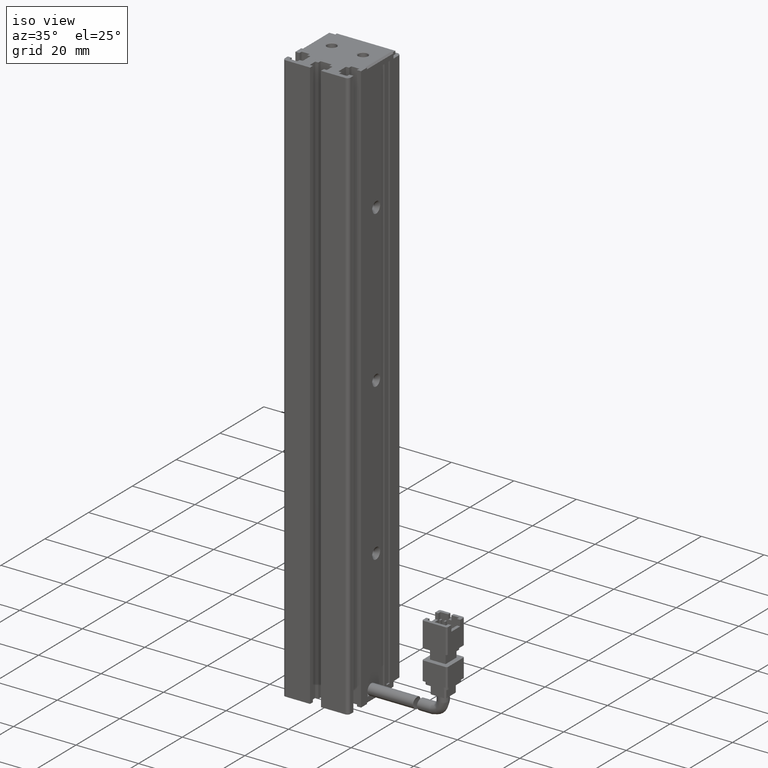
[diagram: clean part render]
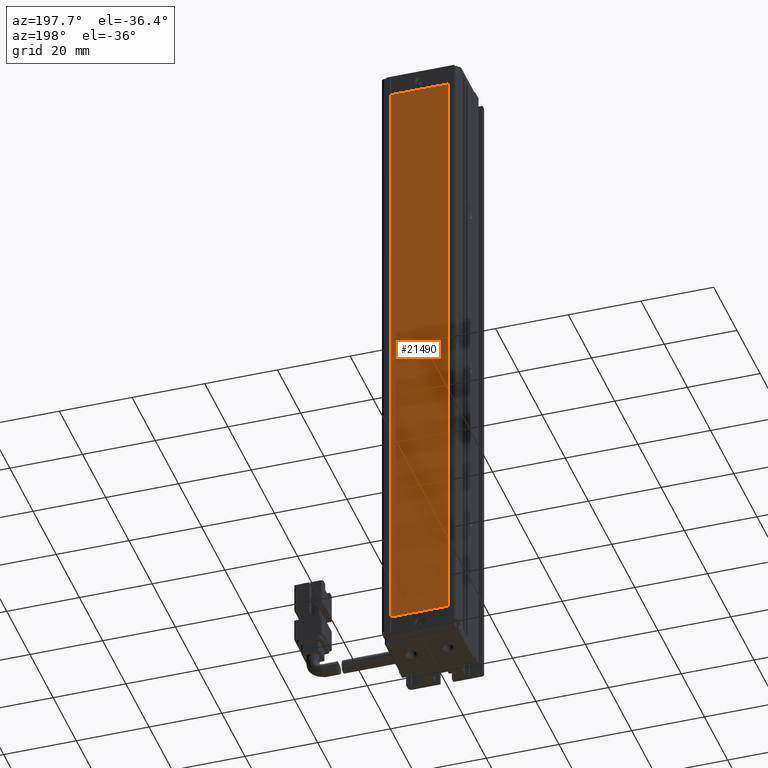
[diagram: tour spotlight — one face highlighted and labeled with its STEP entity id]
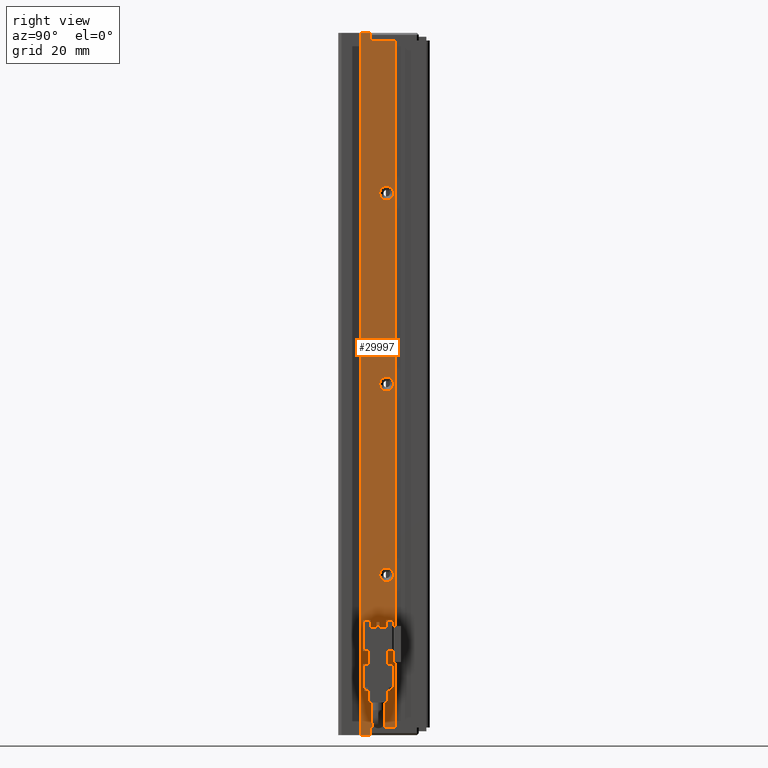
[diagram: tour spotlight — one face highlighted and labeled with its STEP entity id]
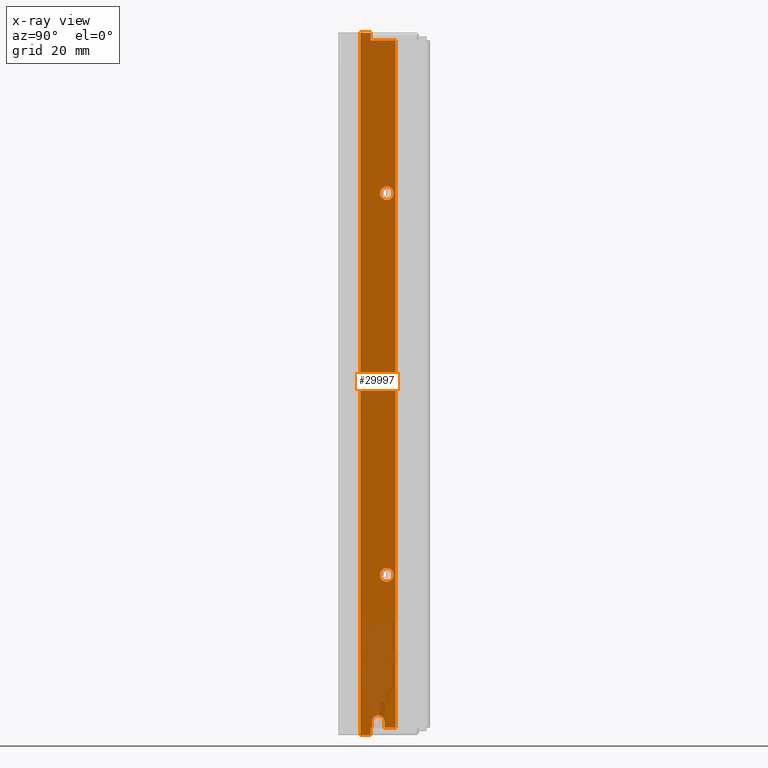
[diagram: x-ray of the same camera — body ghosted, this tour face saturated]
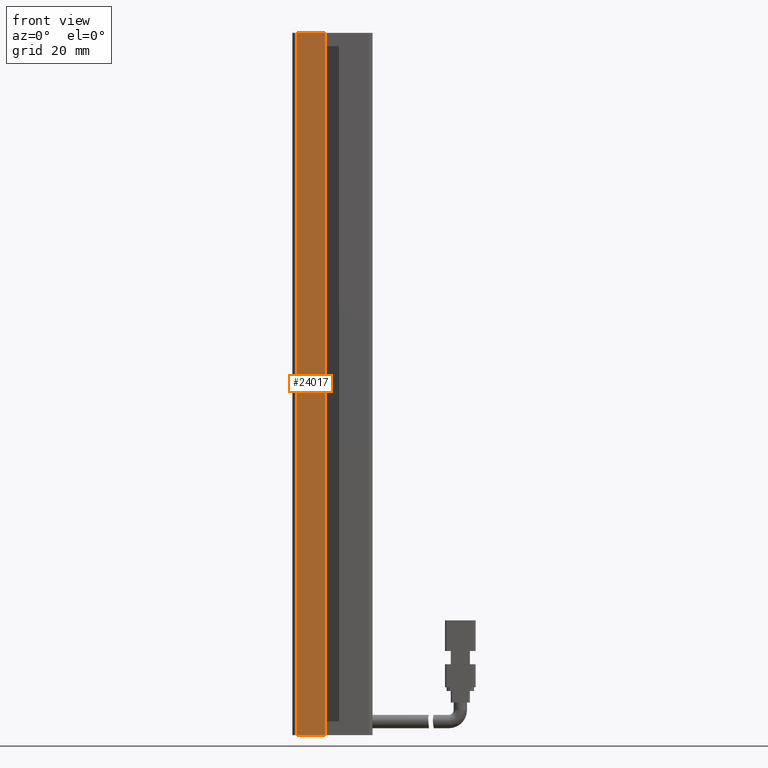
[diagram: tour spotlight — one face highlighted and labeled with its STEP entity id]
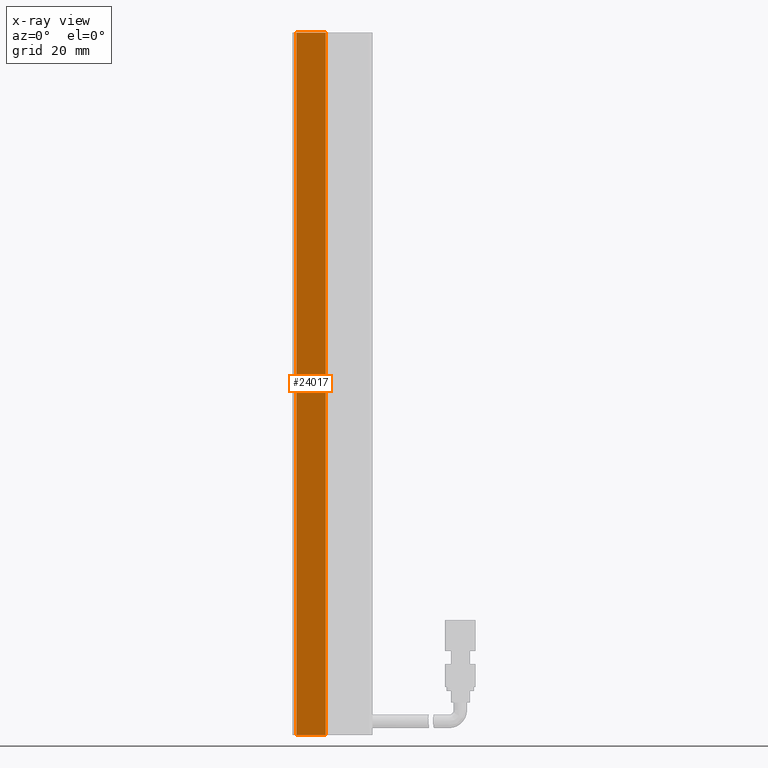
[diagram: x-ray of the same camera — body ghosted, this tour face saturated]
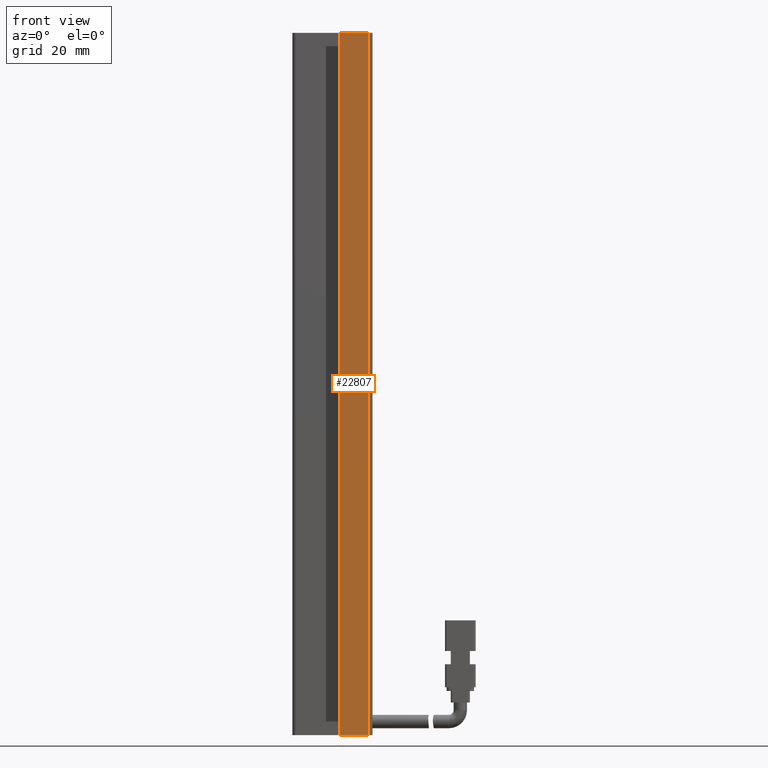
[diagram: tour spotlight — one face highlighted and labeled with its STEP entity id]
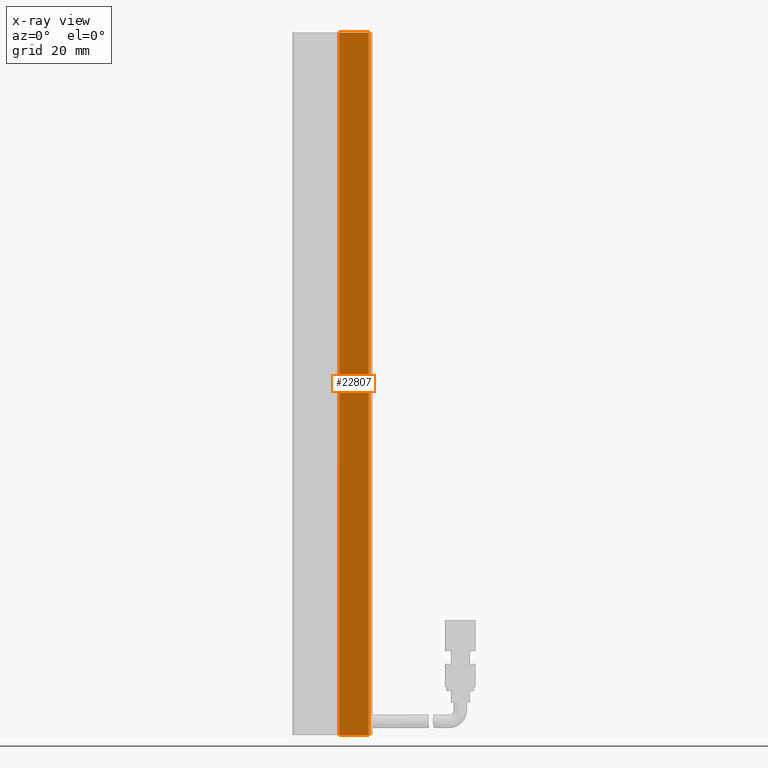
[diagram: x-ray of the same camera — body ghosted, this tour face saturated]
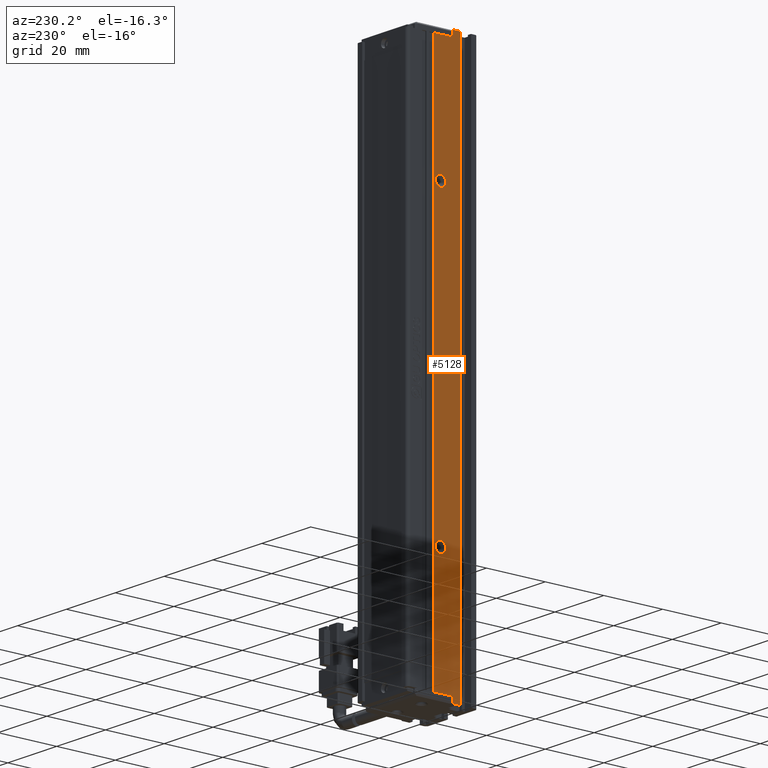
[diagram: tour spotlight — one face highlighted and labeled with its STEP entity id]
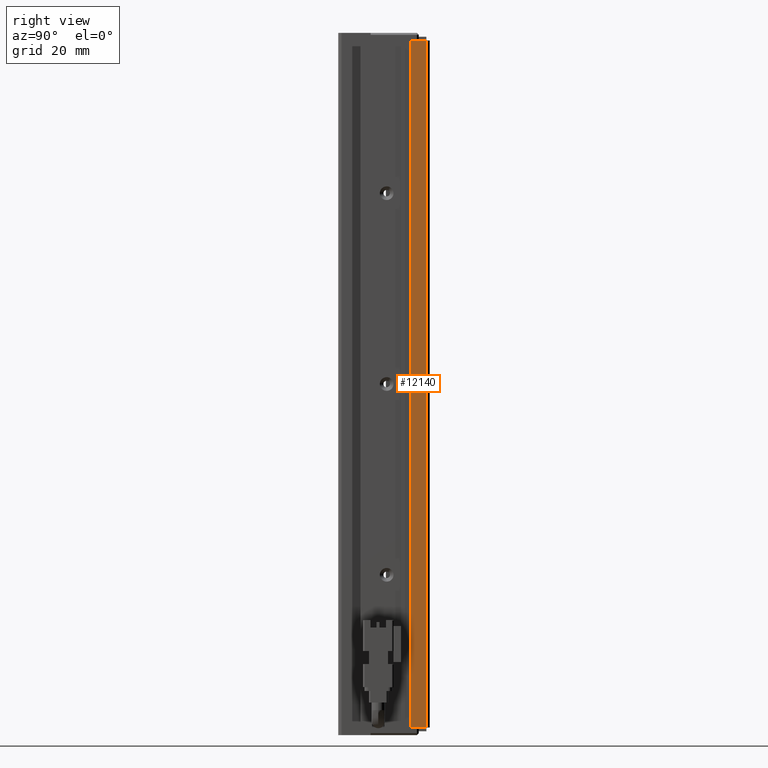
[diagram: tour spotlight — one face highlighted and labeled with its STEP entity id]
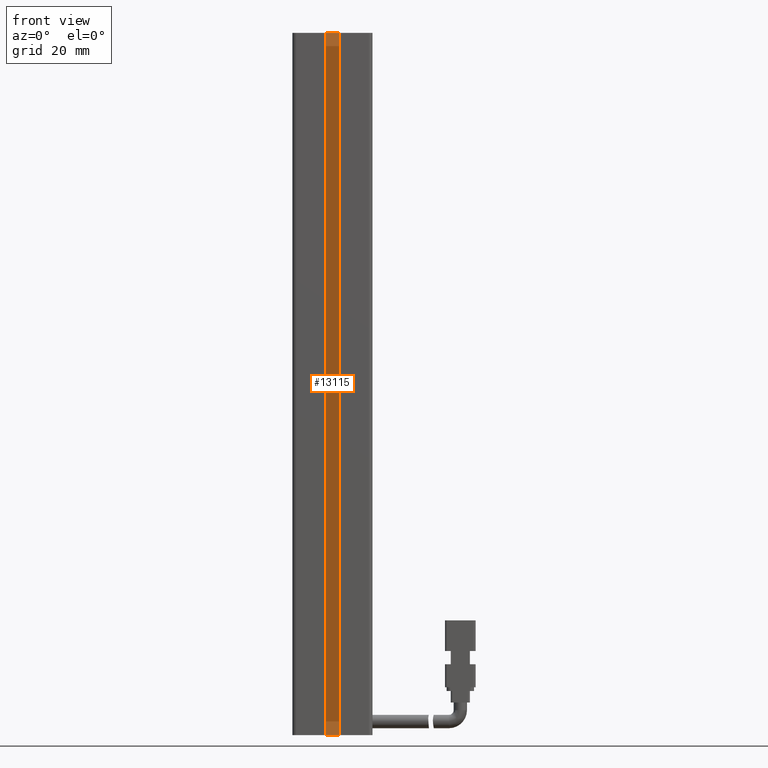
[diagram: tour spotlight — one face highlighted and labeled with its STEP entity id]
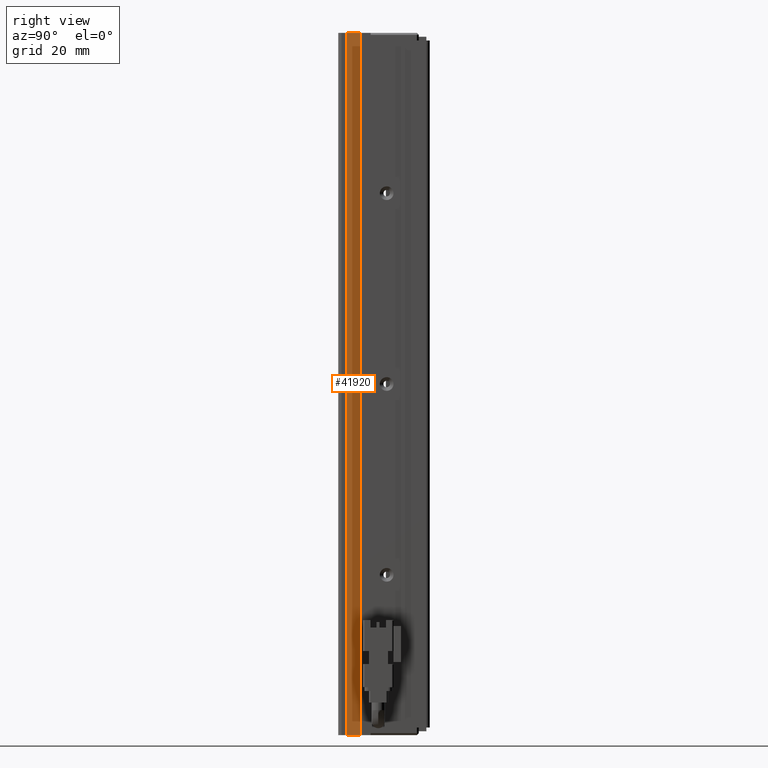
[diagram: tour spotlight — one face highlighted and labeled with its STEP entity id]
A machine part: a face-by-face anatomy tour. The part has 1075 B-rep faces; the first image is the clean iso view, then the 8 largest visible faces are spotlighted one at a time (largest first), each with its STEP entity span.

Face 1 — auxiliary view, entity #21490. In plain terms, the highlighted planar face has unit normal (0, -1, 0).
Definition (entity closure, byte-faithful):
#453 = FACE_OUTER_BOUND ( 'NONE', #15673, .T. ) ;
#854 = LINE ( 'NONE', #45803, #25491 ) ;
#1598 = VERTEX_POINT ( 'NONE', #27131 ) ;
#4751 = VERTEX_POINT ( 'NONE', #34715 ) ;
#4973 = LINE ( 'NONE', #32891, #18463 ) ;
#6495 = DIRECTION ( 'NONE',  ( 0.0000000000000000000, -0.0000000000000000000, -1.000000000000000000 ) ) ;
#6977 = DIRECTION ( 'NONE',  ( 0.0000000000000000000, -1.000000000000000000, 0.0000000000000000000 ) ) ;
#10190 = DIRECTION ( 'NONE',  ( 1.000000000000000000, -0.0000000000000000000, -0.0000000000000000000 ) ) ;
#10273 = PLANE ( 'NONE',  #34060 ) ;
#13652 = DIRECTION ( 'NONE',  ( -1.000000000000000000, -0.0000000000000000000, -0.0000000000000000000 ) ) ;
#15673 = EDGE_LOOP ( 'NONE', ( #43358, #32452, #18674, #39259 ) ) ;
#16815 = DIRECTION ( 'NONE',  ( -4.081702296416017000E-017, -0.0000000000000000000, 1.000000000000000000 ) ) ;
#18121 = CARTESIAN_POINT ( 'NONE',  ( 0.0000000000000000000, 34.29073232304836700, 0.0000000000000000000 ) ) ;
#18463 = VECTOR ( 'NONE', #32238, 1000.000000000000000 ) ;
#18674 = ORIENTED_EDGE ( 'NONE', *, *, #35194, .T. ) ;
#19139 = CARTESIAN_POINT ( 'NONE',  ( 48.92537974683541800, 34.29073232304836700, -200.0000000000000000 ) ) ;
#21490 = ADVANCED_FACE ( 'NONE', ( #453 ), #10273, .F. ) ;
#21510 = CARTESIAN_POINT ( 'NONE',  ( 48.92537974683541800, 34.29073232304836700, -30.00000000000001400 ) ) ;
#22504 = VECTOR ( 'NONE', #10190, 1000.000000000000000 ) ;
#24124 = VERTEX_POINT ( 'NONE', #34490 ) ;
#25433 = LINE ( 'NONE', #21510, #22504 ) ;
#25491 = VECTOR ( 'NONE', #16815, 1000.000000000000000 ) ;
#27131 = CARTESIAN_POINT ( 'NONE',  ( 32.92537974683541800, 34.29073232304836700, -30.00000000000001400 ) ) ;
#31486 = CARTESIAN_POINT ( 'NONE',  ( 32.92537974683542500, 34.29073232304836700, -200.0000000000000000 ) ) ;
#32238 = DIRECTION ( 'NONE',  ( -0.0000000000000000000, -0.0000000000000000000, -1.000000000000000000 ) ) ;
#32452 = ORIENTED_EDGE ( 'NONE', *, *, #43068, .T. ) ;
#32891 = CARTESIAN_POINT ( 'NONE',  ( 48.92537974683541800, 34.29073232304836700, -114.9999999999999700 ) ) ;
#33202 = VECTOR ( 'NONE', #13652, 1000.000000000000000 ) ;
#34060 = AXIS2_PLACEMENT_3D ( 'NONE', #18121, #6977, #6495 ) ;
#34490 = CARTESIAN_POINT ( 'NONE',  ( 48.92537974683541800, 34.29073232304836700, -30.00000000000001400 ) ) ;
#34715 = CARTESIAN_POINT ( 'NONE',  ( 32.92537974683542500, 34.29073232304836700, -200.0000000000000000 ) ) ;
#35194 = EDGE_CURVE ( 'NONE', #24124, #44761, #4973, .T. ) ;
#35500 = EDGE_CURVE ( 'NONE', #4751, #1598, #854, .T. ) ;
#39259 = ORIENTED_EDGE ( 'NONE', *, *, #45466, .T. ) ;
#43068 = EDGE_CURVE ( 'NONE', #1598, #24124, #25433, .T. ) ;
#43358 = ORIENTED_EDGE ( 'NONE', *, *, #35500, .T. ) ;
#44761 = VERTEX_POINT ( 'NONE', #19139 ) ;
#44935 = LINE ( 'NONE', #31486, #33202 ) ;
#45466 = EDGE_CURVE ( 'NONE', #44761, #4751, #44935, .T. ) ;
#45803 = CARTESIAN_POINT ( 'NONE',  ( 32.92537974683541800, 34.29073232304836700, -30.00000000000001400 ) ) ;

Face 2 — right view, entity #29997. An x-ray twin of the same camera follows (body ghosted, this face saturated) — the face is partly hidden behind the body. In plain terms, the highlighted planar face has unit normal (-1, 0, 0).
Definition (entity closure, byte-faithful):
#972 = EDGE_CURVE ( 'NONE', #11659, #45012, #28967, .T. ) ;
#1523 = CARTESIAN_POINT ( 'NONE',  ( 51.42537974683541800, 25.99073232304837300, -24.99999999999999300 ) ) ;
#1592 = VECTOR ( 'NONE', #2013, 1000.000000000000000 ) ;
#1963 = LINE ( 'NONE', #12804, #35336 ) ;
#2013 = DIRECTION ( 'NONE',  ( -0.0000000000000000000, 0.0000000000000000000, 1.000000000000000000 ) ) ;
#2159 = VERTEX_POINT ( 'NONE', #25344 ) ;
#2542 = ORIENTED_EDGE ( 'NONE', *, *, #34721, .F. ) ;
#2911 = ORIENTED_EDGE ( 'NONE', *, *, #24276, .F. ) ;
#3794 = EDGE_CURVE ( 'NONE', #37500, #9038, #20906, .T. ) ;
#3940 = LINE ( 'NONE', #39465, #1592 ) ;
#4318 = ORIENTED_EDGE ( 'NONE', *, *, #9995, .F. ) ;
#5286 = DIRECTION ( 'NONE',  ( -0.0000000000000000000, 0.0000000000000000000, 1.000000000000000000 ) ) ;
#5288 = CARTESIAN_POINT ( 'NONE',  ( 51.42537974683541800, 19.49073232304837000, -24.99999999999999300 ) ) ;
#5511 = VERTEX_POINT ( 'NONE', #12801 ) ;
#5896 = ORIENTED_EDGE ( 'NONE', *, *, #46355, .F. ) ;
#5998 = CARTESIAN_POINT ( 'NONE',  ( 51.42537974675766300, 23.69073232304837300, -115.0000000000000000 ) ) ;
#6133 = CARTESIAN_POINT ( 'NONE',  ( 51.42537974683541100, 23.14073232304837200, -203.4500000000000200 ) ) ;
#6305 = DIRECTION ( 'NONE',  ( 1.000000000000000000, 0.0000000000000000000, 0.0000000000000000000 ) ) ;
#6530 = CARTESIAN_POINT ( 'NONE',  ( 51.42537974683541800, 16.79073232304837000, -22.99999999999999300 ) ) ;
#6904 = DIRECTION ( 'NONE',  ( 1.000000000000000000, 0.0000000000000000000, 0.0000000000000000000 ) ) ;
#7023 = ORIENTED_EDGE ( 'NONE', *, *, #45415, .T. ) ;
#7496 = CARTESIAN_POINT ( 'NONE',  ( 51.42537974683541800, 19.84073232304836800, -205.0000000000000300 ) ) ;
#7987 = EDGE_CURVE ( 'NONE', #47756, #29856, #18409, .T. ) ;
#8563 = ORIENTED_EDGE ( 'NONE', *, *, #3794, .T. ) ;
#9018 = VERTEX_POINT ( 'NONE', #27978 ) ;
#9038 = VERTEX_POINT ( 'NONE', #27348 ) ;
#9421 = VECTOR ( 'NONE', #35374, 1000.000000000000000 ) ;
#9868 = CARTESIAN_POINT ( 'NONE',  ( 51.42537974683541800, 16.79073232304837000, -23.00000000000000700 ) ) ;
#9984 = VERTEX_POINT ( 'NONE', #26294 ) ;
#9995 = EDGE_CURVE ( 'NONE', #2159, #9018, #28775, .T. ) ;
#10055 = VECTOR ( 'NONE', #40263, 1000.000000000000000 ) ;
#10947 = DIRECTION ( 'NONE',  ( 0.0000000000000000000, 0.0000000000000000000, -1.000000000000000000 ) ) ;
#11037 = DIRECTION ( 'NONE',  ( -0.0000000000000000000, -1.000000000000000000, 0.0000000000000000000 ) ) ;
#11221 = DIRECTION ( 'NONE',  ( -1.000000000000000000, 0.0000000000000000000, 0.0000000000000000000 ) ) ;
#11659 = VERTEX_POINT ( 'NONE', #37707 ) ;
#12492 = EDGE_LOOP ( 'NONE', ( #44195, #43878 ) ) ;
#12719 = VECTOR ( 'NONE', #39485, 1000.000000000000000 ) ;
#12801 = CARTESIAN_POINT ( 'NONE',  ( 51.42537974683541800, 19.49073232304837000, -205.0000000000000300 ) ) ;
#12804 = CARTESIAN_POINT ( 'NONE',  ( 51.42537974683541800, 19.49073232304837000, -23.00000000000000700 ) ) ;
#12946 = EDGE_CURVE ( 'NONE', #26878, #40447, #47943, .T. ) ;
#13446 = CIRCLE ( 'NONE', #46757, 1.800000000002910400 ) ;
#13835 = ORIENTED_EDGE ( 'NONE', *, *, #32226, .F. ) ;
#14016 = CARTESIAN_POINT ( 'NONE',  ( 51.42537974687135000, 23.69073232304837300, -66.79999999999154200 ) ) ;
#14083 = AXIS2_PLACEMENT_3D ( 'NONE', #33387, #30077, #10947 ) ;
#14301 = DIRECTION ( 'NONE',  ( 0.0000000000000000000, 0.0000000000000000000, -1.000000000000000000 ) ) ;
#14691 = DIRECTION ( 'NONE',  ( 1.000000000000000000, 0.0000000000000000000, 0.0000000000000000000 ) ) ;
#14783 = DIRECTION ( 'NONE',  ( 1.000000000000000000, 0.0000000000000000000, 0.0000000000000000000 ) ) ;
#15781 = AXIS2_PLACEMENT_3D ( 'NONE', #18941, #11221, #25823 ) ;
#16795 = CIRCLE ( 'NONE', #31542, 1.799999999991544400 ) ;
#17309 = EDGE_CURVE ( 'NONE', #45012, #11659, #13446, .T. ) ;
#17529 = ORIENTED_EDGE ( 'NONE', *, *, #12946, .F. ) ;
#17692 = LINE ( 'NONE', #24305, #9421 ) ;
#17728 = EDGE_CURVE ( 'NONE', #44961, #9038, #47874, .T. ) ;
#18409 = LINE ( 'NONE', #20725, #45935 ) ;
#18941 = CARTESIAN_POINT ( 'NONE',  ( 51.42537974683541800, 7.083797468354437600, -23.00000000000000700 ) ) ;
#18950 = CARTESIAN_POINT ( 'NONE',  ( 51.42537974687135000, 23.69073232304837300, -65.00000000000000000 ) ) ;
#19336 = CARTESIAN_POINT ( 'NONE',  ( 51.42537974687135000, 23.69073232304837300, -63.20000000000845800 ) ) ;
#19925 = DIRECTION ( 'NONE',  ( -0.0000000000000000000, 2.238352872228144400E-015, -1.000000000000000000 ) ) ;
#20036 = CARTESIAN_POINT ( 'NONE',  ( 51.42537974683541800, 7.083797468354437600, -25.00000000000000700 ) ) ;
#20245 = CARTESIAN_POINT ( 'NONE',  ( 51.42537974683541100, 23.14073232304837200, -205.0000000000000300 ) ) ;
#20653 = AXIS2_PLACEMENT_3D ( 'NONE', #44564, #6904, #14301 ) ;
#20725 = CARTESIAN_POINT ( 'NONE',  ( 51.42537974683541800, 7.083797468354437600, -207.0000000000000300 ) ) ;
#20902 = CARTESIAN_POINT ( 'NONE',  ( 51.42537974683541800, 25.99073232304837300, -205.0000000000000300 ) ) ;
#20906 = LINE ( 'NONE', #20245, #29673 ) ;
#21093 = CARTESIAN_POINT ( 'NONE',  ( 51.42537974683541100, 21.49073232304837000, -203.4500000000000200 ) ) ;
#21641 = EDGE_CURVE ( 'NONE', #37540, #45689, #16795, .T. ) ;
#23303 = EDGE_LOOP ( 'NONE', ( #24235, #13835 ) ) ;
#23750 = VECTOR ( 'NONE', #46583, 1000.000000000000000 ) ;
#24057 = VERTEX_POINT ( 'NONE', #7496 ) ;
#24235 = ORIENTED_EDGE ( 'NONE', *, *, #21641, .F. ) ;
#24276 = EDGE_CURVE ( 'NONE', #29856, #38453, #46120, .T. ) ;
#24305 = CARTESIAN_POINT ( 'NONE',  ( 51.42537974683541800, 19.84073232304836800, -205.0000000000000300 ) ) ;
#24417 = FACE_OUTER_BOUND ( 'NONE', #28298, .T. ) ;
#25344 = CARTESIAN_POINT ( 'NONE',  ( 51.42537974687135000, 23.69073232304837300, -166.8000000000142800 ) ) ;
#25823 = DIRECTION ( 'NONE',  ( 0.0000000000000000000, 0.0000000000000000000, 1.000000000000000000 ) ) ;
#26279 = CARTESIAN_POINT ( 'NONE',  ( 51.42537974683541800, 7.083797468354437600, -205.0000000000000300 ) ) ;
#26294 = CARTESIAN_POINT ( 'NONE',  ( 51.42537974683541800, 19.49073232304837000, -22.99999999999999300 ) ) ;
#26344 = ORIENTED_EDGE ( 'NONE', *, *, #30721, .T. ) ;
#26622 = CARTESIAN_POINT ( 'NONE',  ( 51.42537974687135000, 23.69073232304837300, -165.0000000000000000 ) ) ;
#26725 = LINE ( 'NONE', #38441, #29612 ) ;
#26878 = VERTEX_POINT ( 'NONE', #5288 ) ;
#27019 = EDGE_CURVE ( 'NONE', #24057, #5511, #35208, .T. ) ;
#27241 = LINE ( 'NONE', #31374, #23750 ) ;
#27348 = CARTESIAN_POINT ( 'NONE',  ( 51.42537974683541100, 23.14073232304837200, -205.0000000000000300 ) ) ;
#27807 = DIRECTION ( 'NONE',  ( 0.0000000000000000000, 1.000000000000000000, 0.0000000000000000000 ) ) ;
#27978 = CARTESIAN_POINT ( 'NONE',  ( 51.42537974687135000, 23.69073232304837300, -163.1999999999857500 ) ) ;
#28298 = EDGE_LOOP ( 'NONE', ( #31383, #35102, #8563, #33270, #5896, #17529, #26344, #43834, #2911, #32311, #7023, #29381 ) ) ;
#28741 = CARTESIAN_POINT ( 'NONE',  ( 51.42537974675766300, 23.69073232304837300, -113.1999999999970900 ) ) ;
#28751 = AXIS2_PLACEMENT_3D ( 'NONE', #33908, #14783, #36841 ) ;
#28775 = CIRCLE ( 'NONE', #36100, 1.800000000014262400 ) ;
#28967 = CIRCLE ( 'NONE', #28751, 1.800000000002910400 ) ;
#29239 = CARTESIAN_POINT ( 'NONE',  ( 51.42537974683541800, 16.79073232304837000, -207.0000000000000300 ) ) ;
#29381 = ORIENTED_EDGE ( 'NONE', *, *, #27019, .F. ) ;
#29612 = VECTOR ( 'NONE', #31104, 1000.000000000000000 ) ;
#29673 = VECTOR ( 'NONE', #19925, 1000.000000000000000 ) ;
#29856 = VERTEX_POINT ( 'NONE', #29239 ) ;
#29997 = ADVANCED_FACE ( 'NONE', ( #42568, #36092, #24417, #35496 ), #37056, .F. ) ;
#30077 = DIRECTION ( 'NONE',  ( 1.000000000000000000, 0.0000000000000000000, 0.0000000000000000000 ) ) ;
#30721 = EDGE_CURVE ( 'NONE', #26878, #9984, #1963, .T. ) ;
#31104 = DIRECTION ( 'NONE',  ( 0.0000000000000000000, 1.000000000000000000, -0.0000000000000000000 ) ) ;
#31374 = CARTESIAN_POINT ( 'NONE',  ( 51.42537974683541800, 25.99073232304837300, -23.00000000000000700 ) ) ;
#31383 = ORIENTED_EDGE ( 'NONE', *, *, #40396, .T. ) ;
#31542 = AXIS2_PLACEMENT_3D ( 'NONE', #18950, #33345, #36912 ) ;
#31694 = DIRECTION ( 'NONE',  ( -0.0000000000000000000, -1.000000000000000000, 0.0000000000000000000 ) ) ;
#32226 = EDGE_CURVE ( 'NONE', #45689, #37540, #37926, .T. ) ;
#32311 = ORIENTED_EDGE ( 'NONE', *, *, #7987, .F. ) ;
#32663 = EDGE_LOOP ( 'NONE', ( #4318, #2542 ) ) ;
#33270 = ORIENTED_EDGE ( 'NONE', *, *, #17728, .F. ) ;
#33336 = CARTESIAN_POINT ( 'NONE',  ( 51.42537974683541800, 19.84073232304837100, -203.4500000000000200 ) ) ;
#33345 = DIRECTION ( 'NONE',  ( 1.000000000000000000, 0.0000000000000000000, 0.0000000000000000000 ) ) ;
#33387 = CARTESIAN_POINT ( 'NONE',  ( 51.42537974687135000, 23.69073232304837300, -65.00000000000000000 ) ) ;
#33761 = AXIS2_PLACEMENT_3D ( 'NONE', #21093, #43006, #27807 ) ;
#33908 = CARTESIAN_POINT ( 'NONE',  ( 51.42537974675766300, 23.69073232304837300, -115.0000000000000000 ) ) ;
#34416 = VECTOR ( 'NONE', #11037, 1000.000000000000000 ) ;
#34721 = EDGE_CURVE ( 'NONE', #9018, #2159, #44294, .T. ) ;
#35042 = DIRECTION ( 'NONE',  ( 0.0000000000000000000, 1.000000000000000000, -0.0000000000000000000 ) ) ;
#35102 = ORIENTED_EDGE ( 'NONE', *, *, #48041, .F. ) ;
#35208 = LINE ( 'NONE', #40924, #10055 ) ;
#35336 = VECTOR ( 'NONE', #5286, 1000.000000000000000 ) ;
#35374 = DIRECTION ( 'NONE',  ( -0.0000000000000000000, 1.119176436114072200E-015, 1.000000000000000000 ) ) ;
#35496 = FACE_BOUND ( 'NONE', #23303, .T. ) ;
#36092 = FACE_BOUND ( 'NONE', #12492, .T. ) ;
#36100 = AXIS2_PLACEMENT_3D ( 'NONE', #26622, #14691, #40842 ) ;
#36841 = DIRECTION ( 'NONE',  ( 0.0000000000000000000, 0.0000000000000000000, -1.000000000000000000 ) ) ;
#36912 = DIRECTION ( 'NONE',  ( 0.0000000000000000000, 0.0000000000000000000, -1.000000000000000000 ) ) ;
#37056 = PLANE ( 'NONE',  #15781 ) ;
#37440 = CARTESIAN_POINT ( 'NONE',  ( 51.42537974683541800, 19.49073232304837000, -207.0000000000000300 ) ) ;
#37500 = VERTEX_POINT ( 'NONE', #6133 ) ;
#37540 = VERTEX_POINT ( 'NONE', #14016 ) ;
#37707 = CARTESIAN_POINT ( 'NONE',  ( 51.42537974675766300, 23.69073232304837300, -116.8000000000029100 ) ) ;
#37926 = CIRCLE ( 'NONE', #14083, 1.799999999991544400 ) ;
#38441 = CARTESIAN_POINT ( 'NONE',  ( 51.42537974683541800, 7.083797468354437600, -23.00000000000000700 ) ) ;
#38453 = VERTEX_POINT ( 'NONE', #6530 ) ;
#39161 = VECTOR ( 'NONE', #35042, 1000.000000000000000 ) ;
#39465 = CARTESIAN_POINT ( 'NONE',  ( 51.42537974683541800, 19.49073232304837000, -23.00000000000000700 ) ) ;
#39485 = DIRECTION ( 'NONE',  ( 0.0000000000000000000, 0.0000000000000000000, 1.000000000000000000 ) ) ;
#39669 = DIRECTION ( 'NONE',  ( 0.0000000000000000000, 0.0000000000000000000, -1.000000000000000000 ) ) ;
#40263 = DIRECTION ( 'NONE',  ( -0.0000000000000000000, -1.000000000000000000, 0.0000000000000000000 ) ) ;
#40396 = EDGE_CURVE ( 'NONE', #24057, #48296, #17692, .T. ) ;
#40447 = VERTEX_POINT ( 'NONE', #1523 ) ;
#40842 = DIRECTION ( 'NONE',  ( 0.0000000000000000000, 0.0000000000000000000, -1.000000000000000000 ) ) ;
#40924 = CARTESIAN_POINT ( 'NONE',  ( 51.42537974683541800, 7.083797468354437600, -205.0000000000000300 ) ) ;
#42568 = FACE_BOUND ( 'NONE', #32663, .T. ) ;
#43006 = DIRECTION ( 'NONE',  ( 1.000000000000000000, 5.687617954022316600E-016, -0.0000000000000000000 ) ) ;
#43834 = ORIENTED_EDGE ( 'NONE', *, *, #45867, .F. ) ;
#43878 = ORIENTED_EDGE ( 'NONE', *, *, #17309, .F. ) ;
#44195 = ORIENTED_EDGE ( 'NONE', *, *, #972, .F. ) ;
#44294 = CIRCLE ( 'NONE', #20653, 1.800000000014262400 ) ;
#44564 = CARTESIAN_POINT ( 'NONE',  ( 51.42537974687135000, 23.69073232304837300, -165.0000000000000000 ) ) ;
#44961 = VERTEX_POINT ( 'NONE', #20902 ) ;
#45012 = VERTEX_POINT ( 'NONE', #28741 ) ;
#45415 = EDGE_CURVE ( 'NONE', #47756, #5511, #3940, .T. ) ;
#45689 = VERTEX_POINT ( 'NONE', #19336 ) ;
#45867 = EDGE_CURVE ( 'NONE', #38453, #9984, #26725, .T. ) ;
#45935 = VECTOR ( 'NONE', #31694, 1000.000000000000000 ) ;
#46120 = LINE ( 'NONE', #9868, #12719 ) ;
#46355 = EDGE_CURVE ( 'NONE', #40447, #44961, #27241, .T. ) ;
#46583 = DIRECTION ( 'NONE',  ( -0.0000000000000000000, -0.0000000000000000000, -1.000000000000000000 ) ) ;
#46757 = AXIS2_PLACEMENT_3D ( 'NONE', #5998, #6305, #39669 ) ;
#47355 = CIRCLE ( 'NONE', #33761, 1.649999999999998600 ) ;
#47756 = VERTEX_POINT ( 'NONE', #37440 ) ;
#47874 = LINE ( 'NONE', #26279, #34416 ) ;
#47943 = LINE ( 'NONE', #20036, #39161 ) ;
#48041 = EDGE_CURVE ( 'NONE', #37500, #48296, #47355, .T. ) ;
#48296 = VERTEX_POINT ( 'NONE', #33336 ) ;

Face 3 — front view, entity #24017. An x-ray twin of the same camera follows (body ghosted, this face saturated) — the face is partly hidden behind the body. In plain terms, the highlighted planar face has unit normal (0, -1, 0).
Definition (entity closure, byte-faithful):
#1539 = CARTESIAN_POINT ( 'NONE',  ( 40.92537974683542500, 10.99073232304837000, -207.0000000000000300 ) ) ;
#1754 = DIRECTION ( 'NONE',  ( 0.0000000000000000000, -0.0000000000000000000, -1.000000000000000000 ) ) ;
#2946 = ORIENTED_EDGE ( 'NONE', *, *, #44293, .F. ) ;
#3120 = VECTOR ( 'NONE', #8892, 1000.000000000000000 ) ;
#4566 = VERTEX_POINT ( 'NONE', #34248 ) ;
#4847 = VERTEX_POINT ( 'NONE', #20651 ) ;
#8892 = DIRECTION ( 'NONE',  ( 1.000000000000000000, 0.0000000000000000000, 0.0000000000000000000 ) ) ;
#9410 = CARTESIAN_POINT ( 'NONE',  ( 31.42537974683542900, 10.99073232304837000, -23.00000000000000700 ) ) ;
#9629 = EDGE_CURVE ( 'NONE', #17347, #4566, #15965, .T. ) ;
#11578 = ORIENTED_EDGE ( 'NONE', *, *, #19483, .T. ) ;
#11868 = VECTOR ( 'NONE', #1754, 1000.000000000000000 ) ;
#13492 = VERTEX_POINT ( 'NONE', #32863 ) ;
#15069 = DIRECTION ( 'NONE',  ( 0.0000000000000000000, -1.000000000000000000, 0.0000000000000000000 ) ) ;
#15965 = LINE ( 'NONE', #20430, #11868 ) ;
#17347 = VERTEX_POINT ( 'NONE', #9410 ) ;
#18177 = PLANE ( 'NONE',  #31417 ) ;
#18348 = CARTESIAN_POINT ( 'NONE',  ( 39.17537974683542500, 10.99073232304837000, -23.00000000000000700 ) ) ;
#18423 = DIRECTION ( 'NONE',  ( 1.000000000000000000, 0.0000000000000000000, 0.0000000000000000000 ) ) ;
#19483 = EDGE_CURVE ( 'NONE', #4847, #13492, #19617, .T. ) ;
#19617 = LINE ( 'NONE', #18348, #40685 ) ;
#20430 = CARTESIAN_POINT ( 'NONE',  ( 31.42537974683542900, 10.99073232304837000, -23.00000000000000700 ) ) ;
#20651 = CARTESIAN_POINT ( 'NONE',  ( 39.17537974683542500, 10.99073232304837000, -207.0000000000000300 ) ) ;
#21007 = FACE_OUTER_BOUND ( 'NONE', #27602, .T. ) ;
#24017 = ADVANCED_FACE ( 'NONE', ( #21007 ), #18177, .T. ) ;
#26203 = DIRECTION ( 'NONE',  ( 0.0000000000000000000, -0.0000000000000000000, -1.000000000000000000 ) ) ;
#26518 = CARTESIAN_POINT ( 'NONE',  ( 40.92537974683542500, 10.99073232304837000, -23.00000000000000700 ) ) ;
#27602 = EDGE_LOOP ( 'NONE', ( #2946, #38097, #46877, #11578 ) ) ;
#30413 = LINE ( 'NONE', #48004, #45065 ) ;
#31417 = AXIS2_PLACEMENT_3D ( 'NONE', #26518, #15069, #26203 ) ;
#32863 = CARTESIAN_POINT ( 'NONE',  ( 39.17537974683542500, 10.99073232304837000, -22.99999999999999300 ) ) ;
#34248 = CARTESIAN_POINT ( 'NONE',  ( 31.42537974683542900, 10.99073232304837000, -207.0000000000000300 ) ) ;
#36038 = EDGE_CURVE ( 'NONE', #4566, #4847, #42329, .T. ) ;
#38097 = ORIENTED_EDGE ( 'NONE', *, *, #9629, .T. ) ;
#40685 = VECTOR ( 'NONE', #44521, 1000.000000000000000 ) ;
#42329 = LINE ( 'NONE', #1539, #3120 ) ;
#44293 = EDGE_CURVE ( 'NONE', #17347, #13492, #30413, .T. ) ;
#44521 = DIRECTION ( 'NONE',  ( -0.0000000000000000000, 0.0000000000000000000, 1.000000000000000000 ) ) ;
#45065 = VECTOR ( 'NONE', #18423, 1000.000000000000000 ) ;
#46877 = ORIENTED_EDGE ( 'NONE', *, *, #36038, .T. ) ;
#48004 = CARTESIAN_POINT ( 'NONE',  ( 40.92537974683542500, 10.99073232304837000, -23.00000000000000700 ) ) ;

Face 4 — front view, entity #22807. An x-ray twin of the same camera follows (body ghosted, this face saturated) — the face is partly hidden behind the body. In plain terms, the highlighted planar face has unit normal (0, 1, 0).
Definition (entity closure, byte-faithful):
#2697 = EDGE_CURVE ( 'NONE', #18262, #43904, #21107, .T. ) ;
#5034 = DIRECTION ( 'NONE',  ( 0.0000000000000000000, -0.0000000000000000000, 1.000000000000000000 ) ) ;
#6596 = DIRECTION ( 'NONE',  ( 1.000000000000000000, 0.0000000000000000000, 0.0000000000000000000 ) ) ;
#6607 = CARTESIAN_POINT ( 'NONE',  ( 42.67537974683542500, 10.99073232304837000, -22.99999999999999300 ) ) ;
#7270 = ORIENTED_EDGE ( 'NONE', *, *, #34797, .F. ) ;
#7598 = LINE ( 'NONE', #46927, #25216 ) ;
#8881 = ORIENTED_EDGE ( 'NONE', *, *, #27370, .T. ) ;
#10359 = CARTESIAN_POINT ( 'NONE',  ( 50.42537974683541800, 10.99073232304837000, -23.00000000000000700 ) ) ;
#12239 = PLANE ( 'NONE',  #35674 ) ;
#13076 = DIRECTION ( 'NONE',  ( 1.000000000000000000, 0.0000000000000000000, 0.0000000000000000000 ) ) ;
#14470 = CARTESIAN_POINT ( 'NONE',  ( 40.92537974683542500, 10.99073232304837000, -23.00000000000000700 ) ) ;
#16210 = VECTOR ( 'NONE', #6596, 1000.000000000000000 ) ;
#16427 = VERTEX_POINT ( 'NONE', #45610 ) ;
#16607 = ORIENTED_EDGE ( 'NONE', *, *, #2697, .F. ) ;
#17305 = DIRECTION ( 'NONE',  ( 0.0000000000000000000, 1.000000000000000000, 0.0000000000000000000 ) ) ;
#18262 = VERTEX_POINT ( 'NONE', #41257 ) ;
#18408 = CARTESIAN_POINT ( 'NONE',  ( 42.67537974683542500, 10.99073232304837000, -23.00000000000000700 ) ) ;
#20178 = VECTOR ( 'NONE', #29844, 1000.000000000000000 ) ;
#21107 = LINE ( 'NONE', #10359, #41572 ) ;
#22807 = ADVANCED_FACE ( 'NONE', ( #41758 ), #12239, .F. ) ;
#25216 = VECTOR ( 'NONE', #13076, 1000.000000000000000 ) ;
#25900 = VERTEX_POINT ( 'NONE', #6607 ) ;
#27370 = EDGE_CURVE ( 'NONE', #16427, #43904, #7598, .T. ) ;
#27907 = LINE ( 'NONE', #14470, #16210 ) ;
#29336 = DIRECTION ( 'NONE',  ( -0.0000000000000000000, 0.0000000000000000000, -1.000000000000000000 ) ) ;
#29844 = DIRECTION ( 'NONE',  ( 0.0000000000000000000, -0.0000000000000000000, 1.000000000000000000 ) ) ;
#34797 = EDGE_CURVE ( 'NONE', #25900, #18262, #27907, .T. ) ;
#35674 = AXIS2_PLACEMENT_3D ( 'NONE', #38557, #17305, #5034 ) ;
#37642 = EDGE_CURVE ( 'NONE', #16427, #25900, #37694, .T. ) ;
#37694 = LINE ( 'NONE', #18408, #20178 ) ;
#38557 = CARTESIAN_POINT ( 'NONE',  ( 40.92537974683542500, 10.99073232304837000, -23.00000000000000700 ) ) ;
#40099 = EDGE_LOOP ( 'NONE', ( #16607, #7270, #42403, #8881 ) ) ;
#41257 = CARTESIAN_POINT ( 'NONE',  ( 50.42537974683541800, 10.99073232304837000, -23.00000000000000700 ) ) ;
#41572 = VECTOR ( 'NONE', #29336, 1000.000000000000000 ) ;
#41758 = FACE_OUTER_BOUND ( 'NONE', #40099, .T. ) ;
#42403 = ORIENTED_EDGE ( 'NONE', *, *, #37642, .F. ) ;
#43904 = VERTEX_POINT ( 'NONE', #44651 ) ;
#44651 = CARTESIAN_POINT ( 'NONE',  ( 50.42537974683541800, 10.99073232304837000, -207.0000000000000300 ) ) ;
#45610 = CARTESIAN_POINT ( 'NONE',  ( 42.67537974683542500, 10.99073232304837000, -207.0000000000000300 ) ) ;
#46927 = CARTESIAN_POINT ( 'NONE',  ( 40.92537974683542500, 10.99073232304837000, -207.0000000000000300 ) ) ;

Face 5 — auxiliary view, entity #5128. In plain terms, the highlighted planar face has unit normal (-1, 0, 0).
Definition (entity closure, byte-faithful):
#191 = EDGE_LOOP ( 'NONE', ( #24181, #6067 ) ) ;
#693 = LINE ( 'NONE', #36216, #39318 ) ;
#736 = CIRCLE ( 'NONE', #7715, 1.800000000002910400 ) ;
#1273 = FACE_BOUND ( 'NONE', #46380, .T. ) ;
#1859 = EDGE_CURVE ( 'NONE', #9238, #7161, #693, .T. ) ;
#3341 = LINE ( 'NONE', #43344, #46693 ) ;
#3463 = CIRCLE ( 'NONE', #37993, 1.800000000014276400 ) ;
#3741 = EDGE_CURVE ( 'NONE', #24420, #45521, #12156, .T. ) ;
#4357 = CARTESIAN_POINT ( 'NONE',  ( 30.42537974679950000, 23.69073232304837300, -165.0000000000000000 ) ) ;
#5066 = DIRECTION ( 'NONE',  ( 0.0000000000000000000, 0.0000000000000000000, 1.000000000000000000 ) ) ;
#5128 = ADVANCED_FACE ( 'NONE', ( #39297, #31153, #11220, #1273 ), #11759, .T. ) ;
#6000 = ORIENTED_EDGE ( 'NONE', *, *, #25163, .T. ) ;
#6067 = ORIENTED_EDGE ( 'NONE', *, *, #23223, .T. ) ;
#6243 = DIRECTION ( 'NONE',  ( 0.0000000000000000000, 0.0000000000000000000, 1.000000000000000000 ) ) ;
#6368 = EDGE_CURVE ( 'NONE', #47710, #12715, #39607, .T. ) ;
#6881 = CARTESIAN_POINT ( 'NONE',  ( 30.42537974691318700, 23.69073232304837300, -116.8000000000029100 ) ) ;
#7161 = VERTEX_POINT ( 'NONE', #29479 ) ;
#7349 = CARTESIAN_POINT ( 'NONE',  ( 30.42537974683542100, 25.99073232304837300, -205.0000000000000300 ) ) ;
#7502 = CARTESIAN_POINT ( 'NONE',  ( 30.42537974691318700, 23.69073232304837300, -113.1999999999970900 ) ) ;
#7545 = ORIENTED_EDGE ( 'NONE', *, *, #36452, .T. ) ;
#7622 = ORIENTED_EDGE ( 'NONE', *, *, #12980, .T. ) ;
#7715 = AXIS2_PLACEMENT_3D ( 'NONE', #16363, #38592, #5066 ) ;
#8559 = CARTESIAN_POINT ( 'NONE',  ( 30.42537974691318700, 23.69073232304837300, -115.0000000000000000 ) ) ;
#9047 = DIRECTION ( 'NONE',  ( 1.000000000000000000, -0.0000000000000000000, -0.0000000000000000000 ) ) ;
#9238 = VERTEX_POINT ( 'NONE', #23319 ) ;
#10177 = DIRECTION ( 'NONE',  ( 1.000000000000000000, -0.0000000000000000000, -0.0000000000000000000 ) ) ;
#11220 = FACE_BOUND ( 'NONE', #22440, .T. ) ;
#11258 = CIRCLE ( 'NONE', #18133, 1.800000000002910400 ) ;
#11759 = PLANE ( 'NONE',  #12895 ) ;
#12156 = CIRCLE ( 'NONE', #39677, 1.799999999991558400 ) ;
#12715 = VERTEX_POINT ( 'NONE', #23325 ) ;
#12877 = ORIENTED_EDGE ( 'NONE', *, *, #3741, .T. ) ;
#12895 = AXIS2_PLACEMENT_3D ( 'NONE', #41733, #38406, #42197 ) ;
#12980 = EDGE_CURVE ( 'NONE', #19810, #13263, #3463, .T. ) ;
#13194 = VERTEX_POINT ( 'NONE', #6881 ) ;
#13218 = DIRECTION ( 'NONE',  ( 0.0000000000000000000, 0.0000000000000000000, 1.000000000000000000 ) ) ;
#13263 = VERTEX_POINT ( 'NONE', #34055 ) ;
#13356 = ORIENTED_EDGE ( 'NONE', *, *, #25490, .T. ) ;
#13794 = CARTESIAN_POINT ( 'NONE',  ( 30.42537974679950000, 23.69073232304837300, -65.00000000000000000 ) ) ;
#13831 = DIRECTION ( 'NONE',  ( 0.0000000000000000000, 1.000000000000000000, 0.0000000000000000000 ) ) ;
#14555 = EDGE_CURVE ( 'NONE', #22291, #18931, #41218, .T. ) ;
#15182 = VECTOR ( 'NONE', #39416, 1000.000000000000000 ) ;
#15664 = DIRECTION ( 'NONE',  ( 0.0000000000000000000, 0.0000000000000000000, 1.000000000000000000 ) ) ;
#16006 = CARTESIAN_POINT ( 'NONE',  ( 30.42537974683542100, 19.49073232304837000, -22.99999999999999300 ) ) ;
#16231 = ORIENTED_EDGE ( 'NONE', *, *, #1859, .T. ) ;
#16341 = CARTESIAN_POINT ( 'NONE',  ( 30.42537974683542100, 16.79073232304837400, -23.00000000000000700 ) ) ;
#16363 = CARTESIAN_POINT ( 'NONE',  ( 30.42537974691318700, 23.69073232304837300, -115.0000000000000000 ) ) ;
#16666 = DIRECTION ( 'NONE',  ( 1.000000000000000000, -0.0000000000000000000, -0.0000000000000000000 ) ) ;
#17329 = CARTESIAN_POINT ( 'NONE',  ( 30.42537974683542100, 25.99073232304837300, -23.00000000000000700 ) ) ;
#17774 = CARTESIAN_POINT ( 'NONE',  ( 30.42537974683542900, 19.49073232304837000, -207.0000000000000300 ) ) ;
#18006 = AXIS2_PLACEMENT_3D ( 'NONE', #34335, #16666, #13218 ) ;
#18133 = AXIS2_PLACEMENT_3D ( 'NONE', #8559, #9047, #20549 ) ;
#18134 = CARTESIAN_POINT ( 'NONE',  ( 30.42537974679950000, 23.69073232304837300, -63.19999999998572800 ) ) ;
#18931 = VERTEX_POINT ( 'NONE', #45134 ) ;
#19426 = VERTEX_POINT ( 'NONE', #7502 ) ;
#19810 = VERTEX_POINT ( 'NONE', #18134 ) ;
#20549 = DIRECTION ( 'NONE',  ( 0.0000000000000000000, 0.0000000000000000000, 1.000000000000000000 ) ) ;
#20809 = CARTESIAN_POINT ( 'NONE',  ( 30.42537974683542100, 7.083797468354437600, -205.0000000000000300 ) ) ;
#21185 = CARTESIAN_POINT ( 'NONE',  ( 30.42537974679950000, 23.69073232304837300, -166.7999999999915700 ) ) ;
#21461 = DIRECTION ( 'NONE',  ( -0.0000000000000000000, -1.000000000000000000, 0.0000000000000000000 ) ) ;
#21695 = DIRECTION ( 'NONE',  ( 1.000000000000000000, -0.0000000000000000000, -0.0000000000000000000 ) ) ;
#22165 = DIRECTION ( 'NONE',  ( 0.0000000000000000000, -0.0000000000000000000, -1.000000000000000000 ) ) ;
#22291 = VERTEX_POINT ( 'NONE', #45694 ) ;
#22440 = EDGE_LOOP ( 'NONE', ( #7622, #6000 ) ) ;
#23223 = EDGE_CURVE ( 'NONE', #13194, #19426, #11258, .T. ) ;
#23319 = CARTESIAN_POINT ( 'NONE',  ( 30.42537974683542100, 19.49073232304837000, -24.99999999999999300 ) ) ;
#23325 = CARTESIAN_POINT ( 'NONE',  ( 30.42537974683542900, 19.49073232304837000, -205.0000000000000300 ) ) ;
#24181 = ORIENTED_EDGE ( 'NONE', *, *, #43402, .T. ) ;
#24368 = EDGE_CURVE ( 'NONE', #45521, #24420, #42600, .T. ) ;
#24420 = VERTEX_POINT ( 'NONE', #32145 ) ;
#25163 = EDGE_CURVE ( 'NONE', #13263, #19810, #25609, .T. ) ;
#25490 = EDGE_CURVE ( 'NONE', #12715, #28053, #33717, .T. ) ;
#25609 = CIRCLE ( 'NONE', #18006, 1.800000000014276400 ) ;
#26111 = ORIENTED_EDGE ( 'NONE', *, *, #24368, .T. ) ;
#26301 = DIRECTION ( 'NONE',  ( 0.0000000000000000000, -0.0000000000000000000, -1.000000000000000000 ) ) ;
#26410 = AXIS2_PLACEMENT_3D ( 'NONE', #40467, #21695, #33267 ) ;
#27417 = EDGE_LOOP ( 'NONE', ( #37514, #7545, #16231, #30626, #46763, #13356, #30021, #35351 ) ) ;
#27797 = VERTEX_POINT ( 'NONE', #16006 ) ;
#28053 = VERTEX_POINT ( 'NONE', #17774 ) ;
#29479 = CARTESIAN_POINT ( 'NONE',  ( 30.42537974683542900, 25.99073232304837300, -24.99999999999999300 ) ) ;
#29833 = EDGE_CURVE ( 'NONE', #18931, #27797, #3341, .T. ) ;
#30021 = ORIENTED_EDGE ( 'NONE', *, *, #33672, .T. ) ;
#30626 = ORIENTED_EDGE ( 'NONE', *, *, #44533, .T. ) ;
#31153 = FACE_BOUND ( 'NONE', #191, .T. ) ;
#31717 = LINE ( 'NONE', #48436, #36395 ) ;
#32145 = CARTESIAN_POINT ( 'NONE',  ( 30.42537974679950000, 23.69073232304837300, -163.2000000000084600 ) ) ;
#32159 = LINE ( 'NONE', #17329, #15182 ) ;
#33267 = DIRECTION ( 'NONE',  ( 0.0000000000000000000, 0.0000000000000000000, 1.000000000000000000 ) ) ;
#33672 = EDGE_CURVE ( 'NONE', #28053, #22291, #34234, .T. ) ;
#33717 = LINE ( 'NONE', #45430, #48311 ) ;
#34055 = CARTESIAN_POINT ( 'NONE',  ( 30.42537974679950000, 23.69073232304837300, -66.80000000001427900 ) ) ;
#34234 = LINE ( 'NONE', #35490, #44747 ) ;
#34335 = CARTESIAN_POINT ( 'NONE',  ( 30.42537974679950000, 23.69073232304837300, -65.00000000000000000 ) ) ;
#35351 = ORIENTED_EDGE ( 'NONE', *, *, #14555, .T. ) ;
#35490 = CARTESIAN_POINT ( 'NONE',  ( 30.42537974683542100, 7.083797468354437600, -207.0000000000000300 ) ) ;
#36216 = CARTESIAN_POINT ( 'NONE',  ( 30.42537974683542900, 34.99073232304837700, -25.00000000000000700 ) ) ;
#36395 = VECTOR ( 'NONE', #22165, 1000.000000000000000 ) ;
#36452 = EDGE_CURVE ( 'NONE', #27797, #9238, #31717, .T. ) ;
#36533 = VECTOR ( 'NONE', #45855, 1000.000000000000000 ) ;
#37514 = ORIENTED_EDGE ( 'NONE', *, *, #29833, .T. ) ;
#37993 = AXIS2_PLACEMENT_3D ( 'NONE', #13794, #10177, #6243 ) ;
#38052 = DIRECTION ( 'NONE',  ( 1.000000000000000000, -0.0000000000000000000, -0.0000000000000000000 ) ) ;
#38406 = DIRECTION ( 'NONE',  ( -1.000000000000000000, 0.0000000000000000000, 0.0000000000000000000 ) ) ;
#38592 = DIRECTION ( 'NONE',  ( 1.000000000000000000, -0.0000000000000000000, -0.0000000000000000000 ) ) ;
#39297 = FACE_OUTER_BOUND ( 'NONE', #27417, .T. ) ;
#39318 = VECTOR ( 'NONE', #13831, 1000.000000000000000 ) ;
#39416 = DIRECTION ( 'NONE',  ( -0.0000000000000000000, -0.0000000000000000000, -1.000000000000000000 ) ) ;
#39607 = LINE ( 'NONE', #20809, #36533 ) ;
#39677 = AXIS2_PLACEMENT_3D ( 'NONE', #4357, #38052, #15664 ) ;
#40038 = VECTOR ( 'NONE', #46296, 1000.000000000000000 ) ;
#40467 = CARTESIAN_POINT ( 'NONE',  ( 30.42537974679950000, 23.69073232304837300, -165.0000000000000000 ) ) ;
#41218 = LINE ( 'NONE', #16341, #40038 ) ;
#41733 = CARTESIAN_POINT ( 'NONE',  ( 30.42537974683542100, 7.083797468354437600, -23.00000000000000700 ) ) ;
#42197 = DIRECTION ( 'NONE',  ( 0.0000000000000000000, 0.0000000000000000000, 1.000000000000000000 ) ) ;
#42600 = CIRCLE ( 'NONE', #26410, 1.799999999991558400 ) ;
#43344 = CARTESIAN_POINT ( 'NONE',  ( 30.42537974683542100, 7.083797468354437600, -23.00000000000000700 ) ) ;
#43402 = EDGE_CURVE ( 'NONE', #19426, #13194, #736, .T. ) ;
#44533 = EDGE_CURVE ( 'NONE', #7161, #47710, #32159, .T. ) ;
#44747 = VECTOR ( 'NONE', #21461, 1000.000000000000000 ) ;
#45134 = CARTESIAN_POINT ( 'NONE',  ( 30.42537974683542100, 16.79073232304837400, -22.99999999999999300 ) ) ;
#45430 = CARTESIAN_POINT ( 'NONE',  ( 30.42537974683542900, 19.49073232304837000, -23.00000000000000700 ) ) ;
#45521 = VERTEX_POINT ( 'NONE', #21185 ) ;
#45694 = CARTESIAN_POINT ( 'NONE',  ( 30.42537974683542100, 16.79073232304837400, -207.0000000000000300 ) ) ;
#45855 = DIRECTION ( 'NONE',  ( -0.0000000000000000000, -1.000000000000000000, 0.0000000000000000000 ) ) ;
#46296 = DIRECTION ( 'NONE',  ( 0.0000000000000000000, 0.0000000000000000000, 1.000000000000000000 ) ) ;
#46380 = EDGE_LOOP ( 'NONE', ( #12877, #26111 ) ) ;
#46693 = VECTOR ( 'NONE', #47241, 1000.000000000000000 ) ;
#46763 = ORIENTED_EDGE ( 'NONE', *, *, #6368, .T. ) ;
#47241 = DIRECTION ( 'NONE',  ( 0.0000000000000000000, 1.000000000000000000, -0.0000000000000000000 ) ) ;
#47710 = VERTEX_POINT ( 'NONE', #7349 ) ;
#48311 = VECTOR ( 'NONE', #26301, 1000.000000000000000 ) ;
#48436 = CARTESIAN_POINT ( 'NONE',  ( 30.42537974683542100, 19.49073232304837000, -23.00000000000000700 ) ) ;

Face 6 — right view, entity #12140. In plain terms, the highlighted planar face has unit normal (-1, -0, 0).
Definition (entity closure, byte-faithful):
#654 = DIRECTION ( 'NONE',  ( -0.0000000000000000000, -0.0000000000000000000, -1.000000000000000000 ) ) ;
#1479 = VECTOR ( 'NONE', #32550, 1000.000000000000000 ) ;
#1677 = CARTESIAN_POINT ( 'NONE',  ( 51.42537974683541800, 29.99073232304837000, -205.0000000000000300 ) ) ;
#3929 = CARTESIAN_POINT ( 'NONE',  ( 51.42537974683541800, 33.99073232304837000, -23.00000000000000700 ) ) ;
#5374 = VERTEX_POINT ( 'NONE', #28265 ) ;
#7159 = VECTOR ( 'NONE', #31393, 1000.000000000000000 ) ;
#7552 = EDGE_CURVE ( 'NONE', #5374, #28689, #48266, .T. ) ;
#8720 = CARTESIAN_POINT ( 'NONE',  ( 51.42537974683541800, 33.99073232304837000, -205.0000000000000300 ) ) ;
#9688 = EDGE_CURVE ( 'NONE', #15091, #30708, #41126, .T. ) ;
#9923 = EDGE_CURVE ( 'NONE', #30708, #28689, #38145, .T. ) ;
#10503 = ORIENTED_EDGE ( 'NONE', *, *, #9688, .F. ) ;
#10567 = LINE ( 'NONE', #3929, #24094 ) ;
#10646 = VECTOR ( 'NONE', #48485, 1000.000000000000000 ) ;
#12140 = ADVANCED_FACE ( 'NONE', ( #41281 ), #30552, .F. ) ;
#15091 = VERTEX_POINT ( 'NONE', #8720 ) ;
#15528 = DIRECTION ( 'NONE',  ( 4.336808689942017700E-016, -1.000000000000000000, 0.0000000000000000000 ) ) ;
#19838 = AXIS2_PLACEMENT_3D ( 'NONE', #37723, #30222, #15528 ) ;
#22384 = CARTESIAN_POINT ( 'NONE',  ( 51.42537974683541800, 29.99073232304837000, -23.00000000000000700 ) ) ;
#24094 = VECTOR ( 'NONE', #654, 1000.000000000000000 ) ;
#27195 = CARTESIAN_POINT ( 'NONE',  ( 51.42537974683541800, 29.99073232304837000, -24.99999999999999300 ) ) ;
#27232 = EDGE_CURVE ( 'NONE', #5374, #15091, #10567, .T. ) ;
#28265 = CARTESIAN_POINT ( 'NONE',  ( 51.42537974683541800, 33.99073232304837000, -25.00000000000000700 ) ) ;
#28689 = VERTEX_POINT ( 'NONE', #27195 ) ;
#29048 = ORIENTED_EDGE ( 'NONE', *, *, #27232, .F. ) ;
#30222 = DIRECTION ( 'NONE',  ( -1.000000000000000000, -4.336808689942017700E-016, 0.0000000000000000000 ) ) ;
#30552 = PLANE ( 'NONE',  #19838 ) ;
#30708 = VERTEX_POINT ( 'NONE', #1677 ) ;
#31393 = DIRECTION ( 'NONE',  ( -0.0000000000000000000, -1.000000000000000000, -0.0000000000000000000 ) ) ;
#32076 = CARTESIAN_POINT ( 'NONE',  ( 51.42537974683541800, 34.99073232304837700, -25.00000000000000700 ) ) ;
#32550 = DIRECTION ( 'NONE',  ( -0.0000000000000000000, -1.000000000000000000, -0.0000000000000000000 ) ) ;
#34813 = CARTESIAN_POINT ( 'NONE',  ( 51.42537974683541800, 34.99073232304837700, -205.0000000000000300 ) ) ;
#37723 = CARTESIAN_POINT ( 'NONE',  ( 51.42537974683543200, 7.083797468354442000, -23.00000000000000700 ) ) ;
#37973 = ORIENTED_EDGE ( 'NONE', *, *, #7552, .T. ) ;
#38145 = LINE ( 'NONE', #22384, #10646 ) ;
#41126 = LINE ( 'NONE', #34813, #7159 ) ;
#41281 = FACE_OUTER_BOUND ( 'NONE', #47432, .T. ) ;
#47249 = ORIENTED_EDGE ( 'NONE', *, *, #9923, .F. ) ;
#47432 = EDGE_LOOP ( 'NONE', ( #37973, #47249, #10503, #29048 ) ) ;
#48266 = LINE ( 'NONE', #32076, #1479 ) ;
#48485 = DIRECTION ( 'NONE',  ( 0.0000000000000000000, 0.0000000000000000000, 1.000000000000000000 ) ) ;

Face 7 — front view, entity #13115. In plain terms, the highlighted planar face has unit normal (0, 1, 0).
Definition (entity closure, byte-faithful):
#1466 = CARTESIAN_POINT ( 'NONE',  ( 40.92537974683542500, 15.79073232304837000, -23.00000000000000700 ) ) ;
#3537 = VERTEX_POINT ( 'NONE', #21620 ) ;
#4737 = VECTOR ( 'NONE', #31802, 1000.000000000000000 ) ;
#4910 = EDGE_CURVE ( 'NONE', #41244, #3537, #7129, .T. ) ;
#5197 = FACE_OUTER_BOUND ( 'NONE', #38508, .T. ) ;
#6858 = CARTESIAN_POINT ( 'NONE',  ( 39.17537974683542500, 15.79073232304837000, -23.00000000000000700 ) ) ;
#7129 = LINE ( 'NONE', #6858, #45245 ) ;
#7611 = AXIS2_PLACEMENT_3D ( 'NONE', #25579, #29631, #14443 ) ;
#11862 = LINE ( 'NONE', #1466, #42909 ) ;
#13115 = ADVANCED_FACE ( 'NONE', ( #5197 ), #29315, .F. ) ;
#14443 = DIRECTION ( 'NONE',  ( 0.0000000000000000000, -0.0000000000000000000, 1.000000000000000000 ) ) ;
#14845 = ORIENTED_EDGE ( 'NONE', *, *, #38385, .F. ) ;
#16013 = VERTEX_POINT ( 'NONE', #41564 ) ;
#16912 = ORIENTED_EDGE ( 'NONE', *, *, #29366, .F. ) ;
#18113 = CARTESIAN_POINT ( 'NONE',  ( 42.67537974683542500, 15.79073232304837000, -23.00000000000000700 ) ) ;
#21620 = CARTESIAN_POINT ( 'NONE',  ( 39.17537974683542500, 15.79073232304837000, -23.00000000000000700 ) ) ;
#25579 = CARTESIAN_POINT ( 'NONE',  ( 40.92537974683542500, 15.79073232304837000, -23.00000000000000700 ) ) ;
#25728 = VECTOR ( 'NONE', #41074, 1000.000000000000000 ) ;
#27692 = DIRECTION ( 'NONE',  ( 1.000000000000000000, 0.0000000000000000000, 0.0000000000000000000 ) ) ;
#28364 = EDGE_CURVE ( 'NONE', #41244, #16013, #44577, .T. ) ;
#29315 = PLANE ( 'NONE',  #7611 ) ;
#29366 = EDGE_CURVE ( 'NONE', #35792, #16013, #41542, .T. ) ;
#29631 = DIRECTION ( 'NONE',  ( 0.0000000000000000000, 1.000000000000000000, 0.0000000000000000000 ) ) ;
#30082 = CARTESIAN_POINT ( 'NONE',  ( 39.17537974683542500, 15.79073232304837000, -207.0000000000000300 ) ) ;
#31802 = DIRECTION ( 'NONE',  ( 1.000000000000000000, 0.0000000000000000000, 0.0000000000000000000 ) ) ;
#35792 = VERTEX_POINT ( 'NONE', #18113 ) ;
#36644 = DIRECTION ( 'NONE',  ( 0.0000000000000000000, -0.0000000000000000000, 1.000000000000000000 ) ) ;
#38385 = EDGE_CURVE ( 'NONE', #3537, #35792, #11862, .T. ) ;
#38508 = EDGE_LOOP ( 'NONE', ( #16912, #14845, #42930, #46733 ) ) ;
#40596 = CARTESIAN_POINT ( 'NONE',  ( 42.67537974683542500, 15.79073232304837000, -23.00000000000000700 ) ) ;
#41074 = DIRECTION ( 'NONE',  ( -0.0000000000000000000, 0.0000000000000000000, -1.000000000000000000 ) ) ;
#41244 = VERTEX_POINT ( 'NONE', #30082 ) ;
#41542 = LINE ( 'NONE', #40596, #25728 ) ;
#41564 = CARTESIAN_POINT ( 'NONE',  ( 42.67537974683542500, 15.79073232304837000, -207.0000000000000300 ) ) ;
#42909 = VECTOR ( 'NONE', #27692, 1000.000000000000000 ) ;
#42930 = ORIENTED_EDGE ( 'NONE', *, *, #4910, .F. ) ;
#43427 = CARTESIAN_POINT ( 'NONE',  ( 40.92537974683542500, 15.79073232304837000, -207.0000000000000300 ) ) ;
#44577 = LINE ( 'NONE', #43427, #4737 ) ;
#45245 = VECTOR ( 'NONE', #36644, 1000.000000000000000 ) ;
#46733 = ORIENTED_EDGE ( 'NONE', *, *, #28364, .T. ) ;

Face 8 — right view, entity #41920. In plain terms, the highlighted planar face has unit normal (1, 0, -0).
Definition (entity closure, byte-faithful):
#6051 = DIRECTION ( 'NONE',  ( -0.0000000000000000000, 0.0000000000000000000, -1.000000000000000000 ) ) ;
#6362 = LINE ( 'NONE', #36312, #35043 ) ;
#6557 = EDGE_CURVE ( 'NONE', #12552, #30835, #6362, .T. ) ;
#6807 = EDGE_LOOP ( 'NONE', ( #34863, #45026, #17910, #43563 ) ) ;
#8682 = VECTOR ( 'NONE', #10647, 1000.000000000000000 ) ;
#9975 = CARTESIAN_POINT ( 'NONE',  ( 46.62537974683541400, 7.083797468354437600, -23.00000000000000700 ) ) ;
#10647 = DIRECTION ( 'NONE',  ( 0.0000000000000000000, 1.000000000000000000, -0.0000000000000000000 ) ) ;
#10847 = EDGE_CURVE ( 'NONE', #30835, #48469, #15737, .T. ) ;
#12366 = CARTESIAN_POINT ( 'NONE',  ( 46.62537974683541400, 16.79073232304837400, -207.0000000000000300 ) ) ;
#12552 = VERTEX_POINT ( 'NONE', #48149 ) ;
#13432 = PLANE ( 'NONE',  #30236 ) ;
#13542 = VERTEX_POINT ( 'NONE', #13569 ) ;
#13569 = CARTESIAN_POINT ( 'NONE',  ( 46.62537974683541400, 16.79073232304837400, -23.00000000000000700 ) ) ;
#15737 = LINE ( 'NONE', #33231, #8682 ) ;
#16860 = DIRECTION ( 'NONE',  ( 1.000000000000000000, 0.0000000000000000000, -0.0000000000000000000 ) ) ;
#17896 = CARTESIAN_POINT ( 'NONE',  ( 46.62537974683541400, 16.79073232304837400, -23.00000000000000700 ) ) ;
#17910 = ORIENTED_EDGE ( 'NONE', *, *, #10847, .T. ) ;
#18276 = VECTOR ( 'NONE', #25765, 1000.000000000000000 ) ;
#21147 = DIRECTION ( 'NONE',  ( -0.0000000000000000000, 0.0000000000000000000, -1.000000000000000000 ) ) ;
#25765 = DIRECTION ( 'NONE',  ( 0.0000000000000000000, -0.0000000000000000000, 1.000000000000000000 ) ) ;
#26237 = VECTOR ( 'NONE', #34815, 1000.000000000000000 ) ;
#29709 = EDGE_CURVE ( 'NONE', #12552, #13542, #48425, .T. ) ;
#30236 = AXIS2_PLACEMENT_3D ( 'NONE', #9975, #16860, #6051 ) ;
#30835 = VERTEX_POINT ( 'NONE', #36340 ) ;
#33231 = CARTESIAN_POINT ( 'NONE',  ( 46.62537974683541400, 7.083797468354437600, -207.0000000000000300 ) ) ;
#34815 = DIRECTION ( 'NONE',  ( 0.0000000000000000000, 1.000000000000000000, -0.0000000000000000000 ) ) ;
#34863 = ORIENTED_EDGE ( 'NONE', *, *, #29709, .F. ) ;
#35043 = VECTOR ( 'NONE', #21147, 1000.000000000000000 ) ;
#36312 = CARTESIAN_POINT ( 'NONE',  ( 46.62537974683541400, 13.29073232304837000, -23.00000000000000700 ) ) ;
#36340 = CARTESIAN_POINT ( 'NONE',  ( 46.62537974683541400, 13.29073232304837200, -207.0000000000000300 ) ) ;
#41920 = ADVANCED_FACE ( 'NONE', ( #47251 ), #13432, .T. ) ;
#42205 = CARTESIAN_POINT ( 'NONE',  ( 46.62537974683541400, 7.083797468354437600, -23.00000000000000700 ) ) ;
#42264 = LINE ( 'NONE', #17896, #18276 ) ;
#43563 = ORIENTED_EDGE ( 'NONE', *, *, #47126, .T. ) ;
#45026 = ORIENTED_EDGE ( 'NONE', *, *, #6557, .T. ) ;
#47126 = EDGE_CURVE ( 'NONE', #48469, #13542, #42264, .T. ) ;
#47251 = FACE_OUTER_BOUND ( 'NONE', #6807, .T. ) ;
#48149 = CARTESIAN_POINT ( 'NONE',  ( 46.62537974683541400, 13.29073232304837200, -23.00000000000000700 ) ) ;
#48425 = LINE ( 'NONE', #42205, #26237 ) ;
#48469 = VERTEX_POINT ( 'NONE', #12366 ) ;